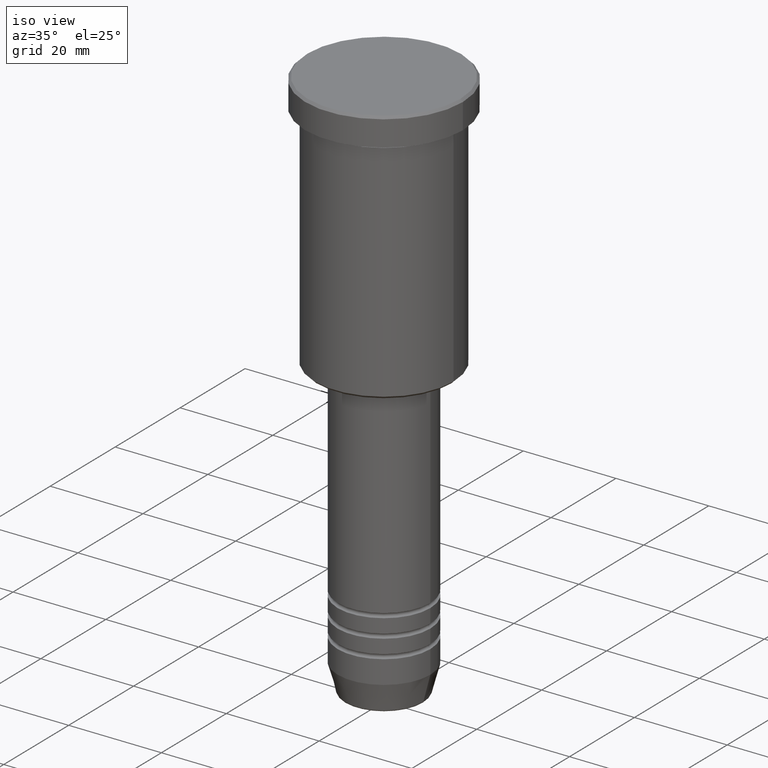
[diagram: clean part render]
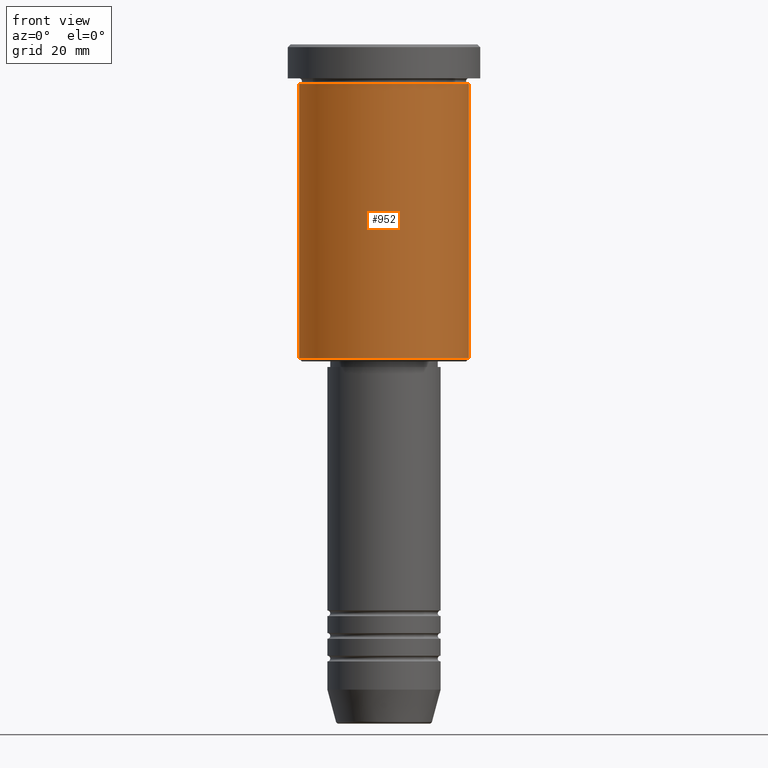
[diagram: tour spotlight — one face highlighted and labeled with its STEP entity id]
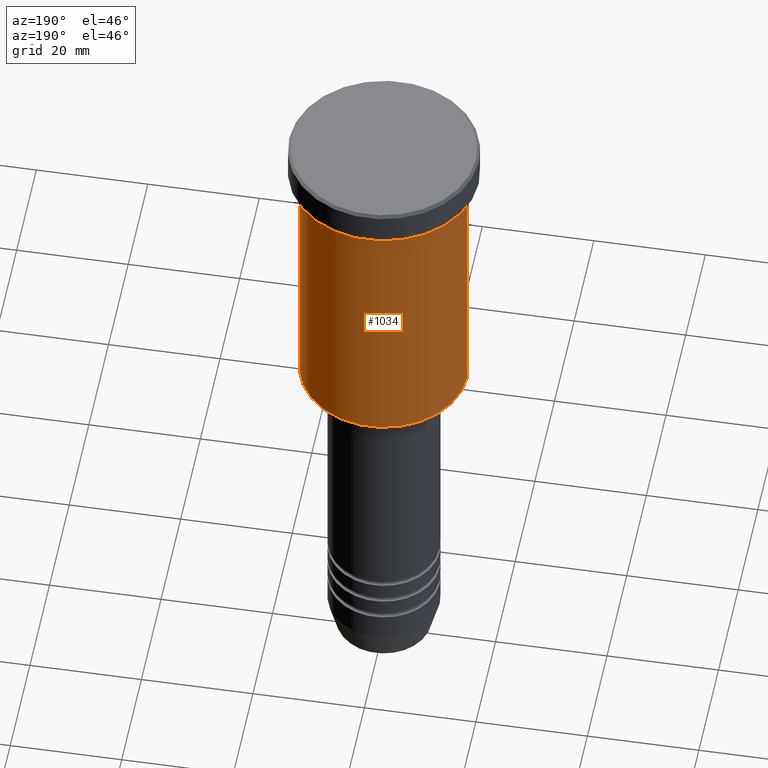
[diagram: tour spotlight — one face highlighted and labeled with its STEP entity id]
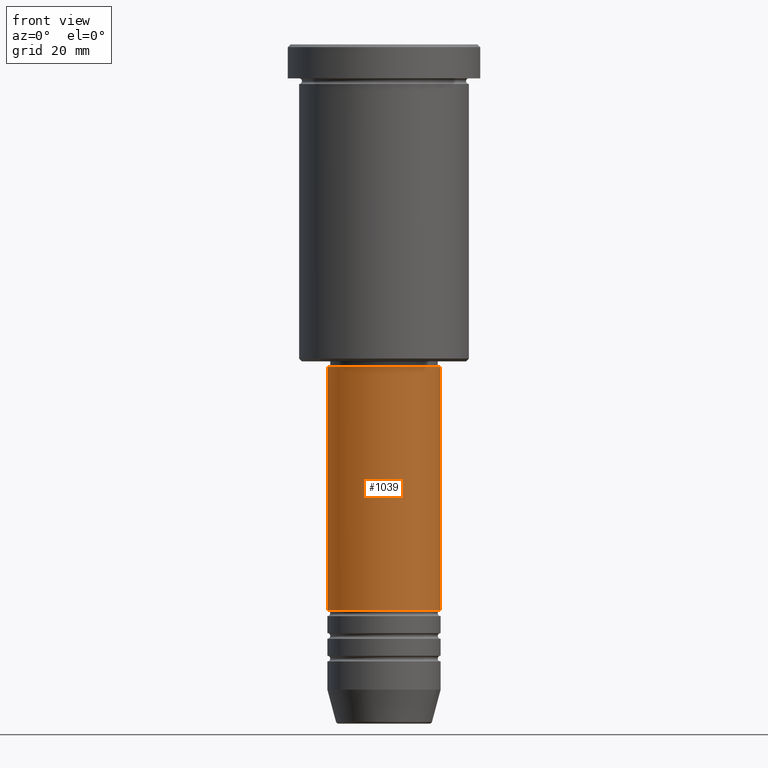
[diagram: tour spotlight — one face highlighted and labeled with its STEP entity id]
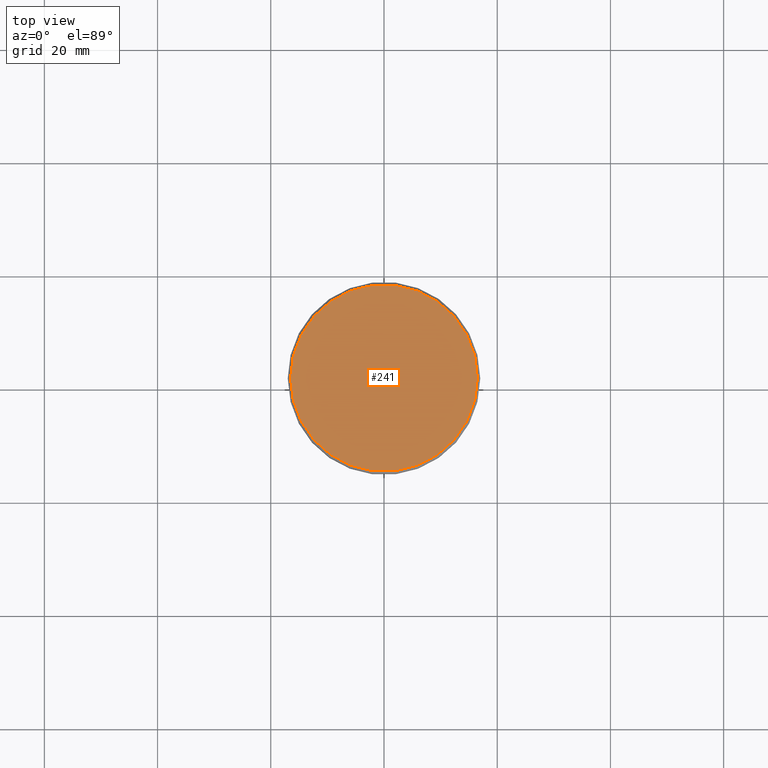
[diagram: tour spotlight — one face highlighted and labeled with its STEP entity id]
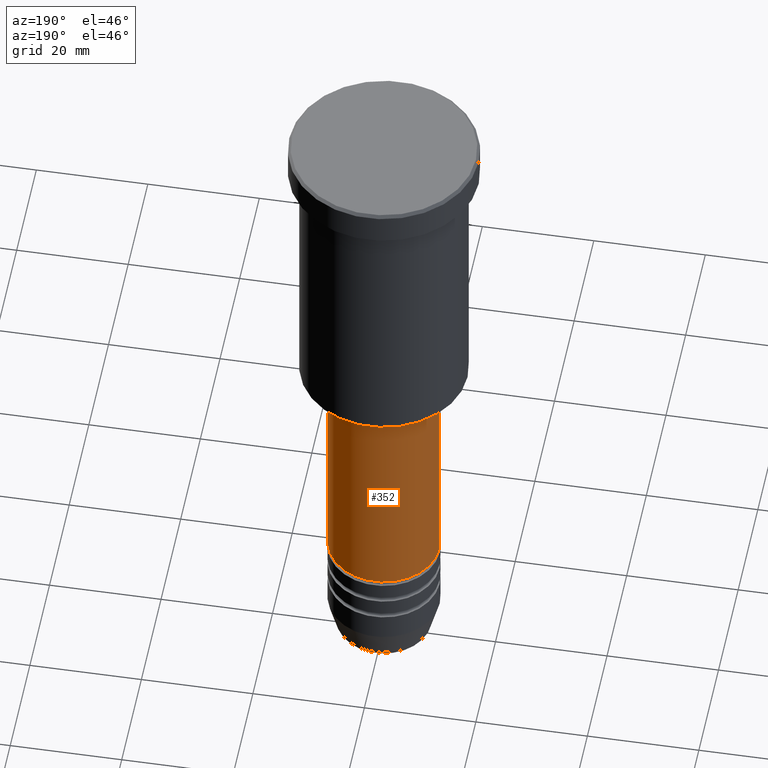
[diagram: tour spotlight — one face highlighted and labeled with its STEP entity id]
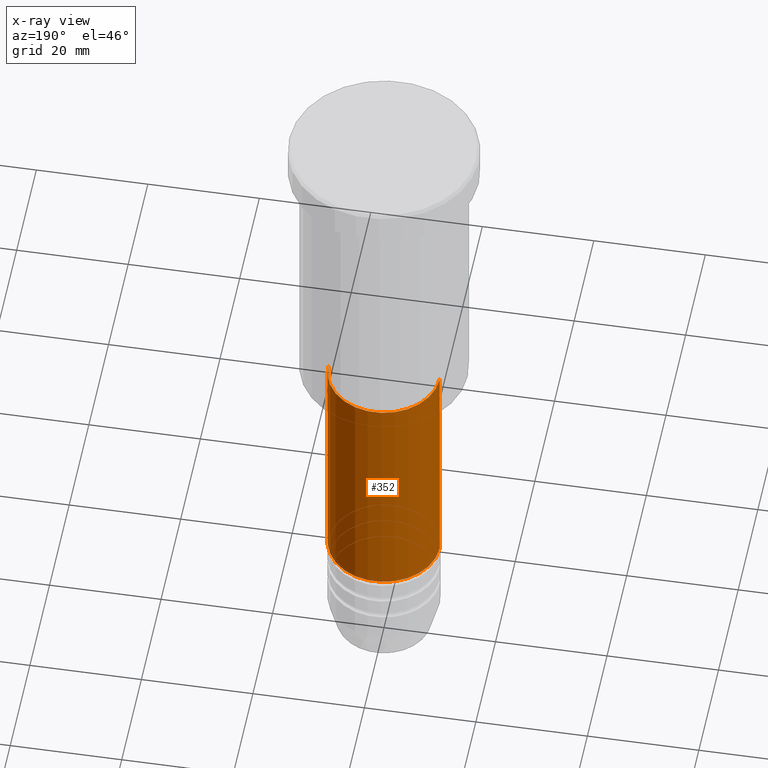
[diagram: x-ray of the same camera — body ghosted, this tour face saturated]
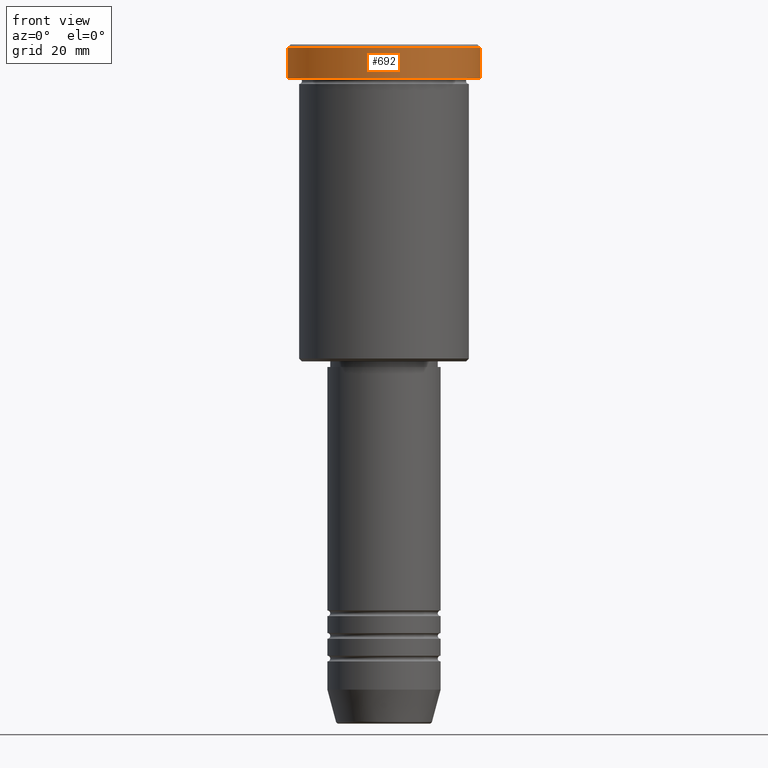
[diagram: tour spotlight — one face highlighted and labeled with its STEP entity id]
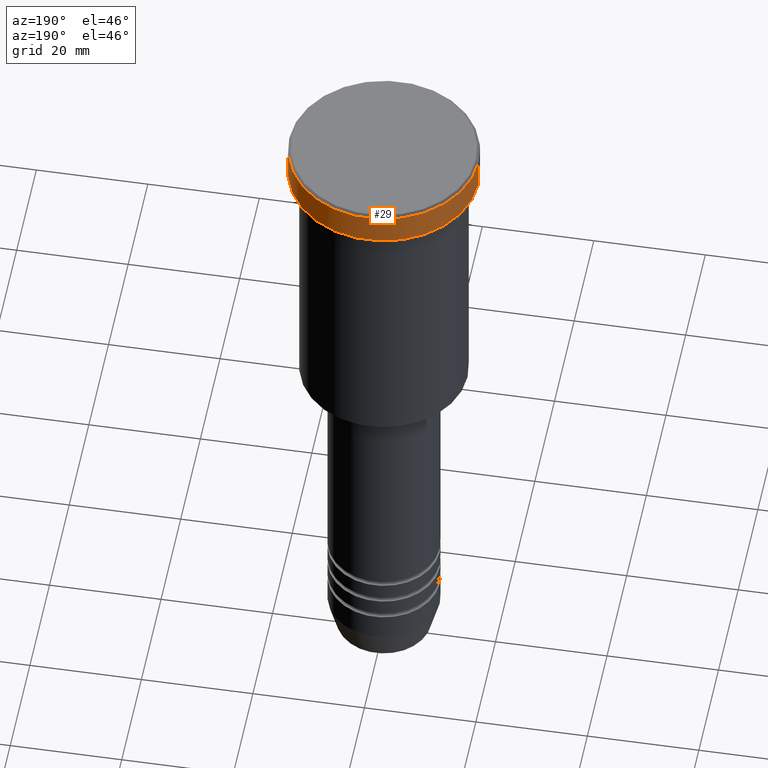
[diagram: tour spotlight — one face highlighted and labeled with its STEP entity id]
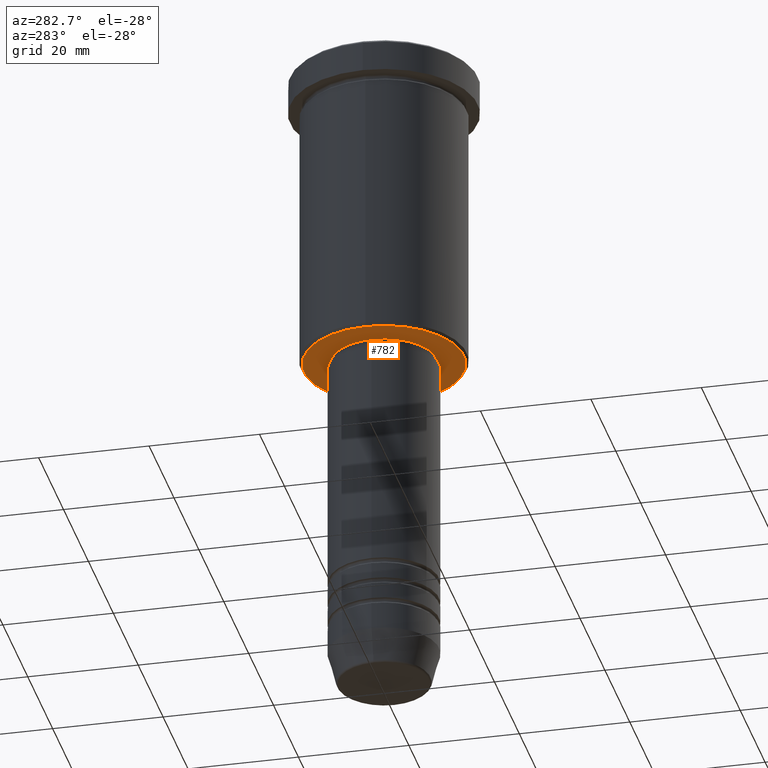
[diagram: tour spotlight — one face highlighted and labeled with its STEP entity id]
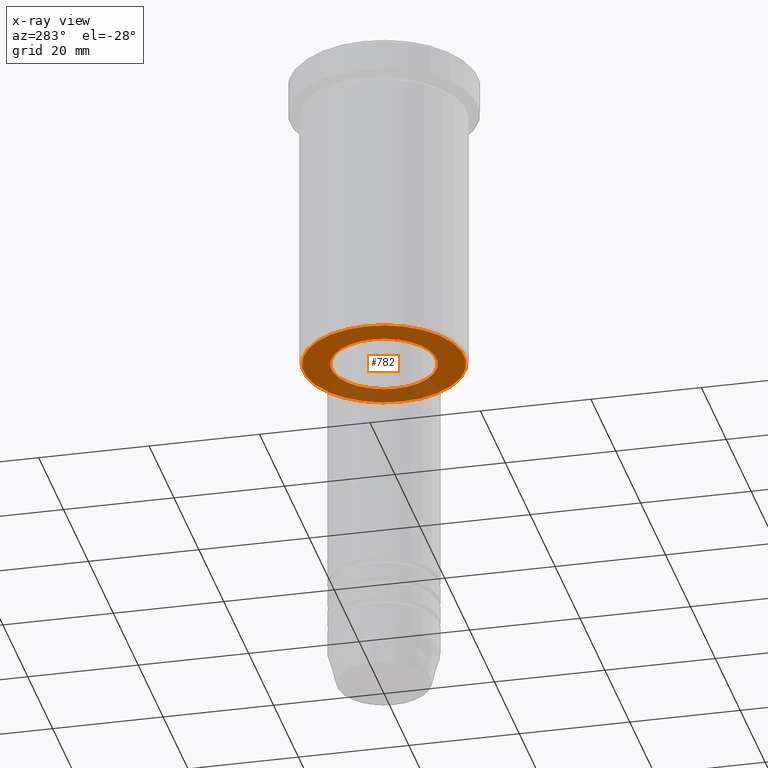
[diagram: x-ray of the same camera — body ghosted, this tour face saturated]
A machine part: a face-by-face anatomy tour. The part has 43 B-rep faces; the first image is the clean iso view, then the 8 largest visible faces are spotlighted one at a time (largest first), each with its STEP entity span.

Face 1 — front view, entity #952. In plain terms, the highlighted cylindrical surface (partial cylindrical patch) has radius 15 mm, axis along (-0, -0, 1).
Definition (entity closure, byte-faithful):
#2 = DIRECTION ( 'NONE',  ( 1.000000000000000000, 0.000000000000000000, 0.000000000000000000 ) ) ;
#9 = CARTESIAN_POINT ( 'NONE',  ( 15.00000000000000000, 0.000000000000000000, 0.000000000000000000 ) ) ;
#25 = CARTESIAN_POINT ( 'NONE',  ( 0.000000000000000000, 0.000000000000000000, 0.000000000000000000 ) ) ;
#43 = EDGE_LOOP ( 'NONE', ( #790, #792, #1123, #133 ) ) ;
#97 = CIRCLE ( 'NONE', #110, 15.00000000000000000 ) ;
#110 = AXIS2_PLACEMENT_3D ( 'NONE', #266, #975, #1078 ) ;
#133 = ORIENTED_EDGE ( 'NONE', *, *, #376, .F. ) ;
#175 = CARTESIAN_POINT ( 'NONE',  ( 15.00000000000000000, 0.000000000000000000, -55.50000000000000711 ) ) ;
#185 = LINE ( 'NONE', #9, #1049 ) ;
#213 = DIRECTION ( 'NONE',  ( -0.000000000000000000, -0.000000000000000000, 1.000000000000000000 ) ) ;
#266 = CARTESIAN_POINT ( 'NONE',  ( 0.000000000000000000, 0.000000000000000000, -6.999999999999995559 ) ) ;
#270 = CARTESIAN_POINT ( 'NONE',  ( -15.00000000000000000, 1.836970198721029589E-15, -6.999999999999995559 ) ) ;
#297 = VERTEX_POINT ( 'NONE', #677 ) ;
#301 = AXIS2_PLACEMENT_3D ( 'NONE', #25, #740, #2 ) ;
#337 = LINE ( 'NONE', #1006, #383 ) ;
#345 = CIRCLE ( 'NONE', #1107, 15.00000000000000000 ) ;
#376 = EDGE_CURVE ( 'NONE', #474, #297, #97, .T. ) ;
#383 = VECTOR ( 'NONE', #704, 1000.000000000000000 ) ;
#427 = VERTEX_POINT ( 'NONE', #175 ) ;
#474 = VERTEX_POINT ( 'NONE', #270 ) ;
#484 = EDGE_CURVE ( 'NONE', #819, #474, #337, .T. ) ;
#560 = CYLINDRICAL_SURFACE ( 'NONE', #301, 15.00000000000000000 ) ;
#581 = DIRECTION ( 'NONE',  ( -1.000000000000000000, 0.000000000000000000, 0.000000000000000000 ) ) ;
#677 = CARTESIAN_POINT ( 'NONE',  ( 15.00000000000000000, 0.000000000000000000, -6.999999999999995559 ) ) ;
#704 = DIRECTION ( 'NONE',  ( -0.000000000000000000, -0.000000000000000000, 1.000000000000000000 ) ) ;
#731 = DIRECTION ( 'NONE',  ( -0.000000000000000000, -0.000000000000000000, 1.000000000000000000 ) ) ;
#740 = DIRECTION ( 'NONE',  ( -0.000000000000000000, -0.000000000000000000, 1.000000000000000000 ) ) ;
#747 = FACE_OUTER_BOUND ( 'NONE', #43, .T. ) ;
#790 = ORIENTED_EDGE ( 'NONE', *, *, #484, .F. ) ;
#792 = ORIENTED_EDGE ( 'NONE', *, *, #1100, .T. ) ;
#819 = VERTEX_POINT ( 'NONE', #1086 ) ;
#952 = ADVANCED_FACE ( 'NONE', ( #747 ), #560, .T. ) ;
#975 = DIRECTION ( 'NONE',  ( -0.000000000000000000, -0.000000000000000000, 1.000000000000000000 ) ) ;
#1006 = CARTESIAN_POINT ( 'NONE',  ( -15.00000000000000000, 1.836970198721029589E-15, 0.000000000000000000 ) ) ;
#1047 = CARTESIAN_POINT ( 'NONE',  ( 0.000000000000000000, 0.000000000000000000, -55.50000000000000711 ) ) ;
#1049 = VECTOR ( 'NONE', #731, 1000.000000000000000 ) ;
#1078 = DIRECTION ( 'NONE',  ( 1.000000000000000000, 0.000000000000000000, 0.000000000000000000 ) ) ;
#1085 = EDGE_CURVE ( 'NONE', #427, #297, #185, .T. ) ;
#1086 = CARTESIAN_POINT ( 'NONE',  ( -15.00000000000000000, 1.836970198721029589E-15, -55.50000000000000711 ) ) ;
#1100 = EDGE_CURVE ( 'NONE', #819, #427, #345, .T. ) ;
#1107 = AXIS2_PLACEMENT_3D ( 'NONE', #1047, #213, #581 ) ;
#1123 = ORIENTED_EDGE ( 'NONE', *, *, #1085, .T. ) ;

Face 2 — auxiliary view, entity #1034. In plain terms, the highlighted cylindrical surface (partial cylindrical patch) has radius 15 mm, axis along (-0, -0, 1).
Definition (entity closure, byte-faithful):
#9 = CARTESIAN_POINT ( 'NONE',  ( 15.00000000000000000, 0.000000000000000000, 0.000000000000000000 ) ) ;
#68 = DIRECTION ( 'NONE',  ( 1.000000000000000000, 0.000000000000000000, 0.000000000000000000 ) ) ;
#101 = FACE_OUTER_BOUND ( 'NONE', #950, .T. ) ;
#107 = EDGE_CURVE ( 'NONE', #427, #819, #1127, .T. ) ;
#175 = CARTESIAN_POINT ( 'NONE',  ( 15.00000000000000000, 0.000000000000000000, -55.50000000000000711 ) ) ;
#185 = LINE ( 'NONE', #9, #1049 ) ;
#193 = AXIS2_PLACEMENT_3D ( 'NONE', #282, #563, #556 ) ;
#270 = CARTESIAN_POINT ( 'NONE',  ( -15.00000000000000000, 1.836970198721029589E-15, -6.999999999999995559 ) ) ;
#282 = CARTESIAN_POINT ( 'NONE',  ( 0.000000000000000000, 0.000000000000000000, -55.50000000000000711 ) ) ;
#297 = VERTEX_POINT ( 'NONE', #677 ) ;
#337 = LINE ( 'NONE', #1006, #383 ) ;
#383 = VECTOR ( 'NONE', #704, 1000.000000000000000 ) ;
#427 = VERTEX_POINT ( 'NONE', #175 ) ;
#430 = CARTESIAN_POINT ( 'NONE',  ( 0.000000000000000000, 0.000000000000000000, -6.999999999999995559 ) ) ;
#474 = VERTEX_POINT ( 'NONE', #270 ) ;
#475 = CYLINDRICAL_SURFACE ( 'NONE', #861, 15.00000000000000000 ) ;
#484 = EDGE_CURVE ( 'NONE', #819, #474, #337, .T. ) ;
#525 = ORIENTED_EDGE ( 'NONE', *, *, #1085, .F. ) ;
#556 = DIRECTION ( 'NONE',  ( -1.000000000000000000, 0.000000000000000000, 0.000000000000000000 ) ) ;
#563 = DIRECTION ( 'NONE',  ( -0.000000000000000000, -0.000000000000000000, 1.000000000000000000 ) ) ;
#611 = ORIENTED_EDGE ( 'NONE', *, *, #947, .F. ) ;
#677 = CARTESIAN_POINT ( 'NONE',  ( 15.00000000000000000, 0.000000000000000000, -6.999999999999995559 ) ) ;
#696 = ORIENTED_EDGE ( 'NONE', *, *, #107, .T. ) ;
#704 = DIRECTION ( 'NONE',  ( -0.000000000000000000, -0.000000000000000000, 1.000000000000000000 ) ) ;
#731 = DIRECTION ( 'NONE',  ( -0.000000000000000000, -0.000000000000000000, 1.000000000000000000 ) ) ;
#777 = AXIS2_PLACEMENT_3D ( 'NONE', #430, #1158, #68 ) ;
#819 = VERTEX_POINT ( 'NONE', #1086 ) ;
#838 = DIRECTION ( 'NONE',  ( 1.000000000000000000, 0.000000000000000000, 0.000000000000000000 ) ) ;
#861 = AXIS2_PLACEMENT_3D ( 'NONE', #1007, #1101, #838 ) ;
#881 = CIRCLE ( 'NONE', #777, 15.00000000000000000 ) ;
#947 = EDGE_CURVE ( 'NONE', #297, #474, #881, .T. ) ;
#950 = EDGE_LOOP ( 'NONE', ( #696, #967, #611, #525 ) ) ;
#967 = ORIENTED_EDGE ( 'NONE', *, *, #484, .T. ) ;
#1006 = CARTESIAN_POINT ( 'NONE',  ( -15.00000000000000000, 1.836970198721029589E-15, 0.000000000000000000 ) ) ;
#1007 = CARTESIAN_POINT ( 'NONE',  ( 0.000000000000000000, 0.000000000000000000, 0.000000000000000000 ) ) ;
#1034 = ADVANCED_FACE ( 'NONE', ( #101 ), #475, .T. ) ;
#1049 = VECTOR ( 'NONE', #731, 1000.000000000000000 ) ;
#1085 = EDGE_CURVE ( 'NONE', #427, #297, #185, .T. ) ;
#1086 = CARTESIAN_POINT ( 'NONE',  ( -15.00000000000000000, 1.836970198721029589E-15, -55.50000000000000711 ) ) ;
#1101 = DIRECTION ( 'NONE',  ( -0.000000000000000000, -0.000000000000000000, 1.000000000000000000 ) ) ;
#1127 = CIRCLE ( 'NONE', #193, 15.00000000000000000 ) ;
#1158 = DIRECTION ( 'NONE',  ( -0.000000000000000000, -0.000000000000000000, 1.000000000000000000 ) ) ;

Face 3 — front view, entity #1039. In plain terms, the highlighted cylindrical surface (partial cylindrical patch) has radius 10 mm, axis along (-0, -0, 1).
Definition (entity closure, byte-faithful):
#16 = FACE_OUTER_BOUND ( 'NONE', #706, .T. ) ;
#54 = EDGE_CURVE ( 'NONE', #1088, #498, #172, .T. ) ;
#62 = DIRECTION ( 'NONE',  ( -0.000000000000000000, -0.000000000000000000, 1.000000000000000000 ) ) ;
#63 = CARTESIAN_POINT ( 'NONE',  ( -9.999999999999998224, 1.224646799147353256E-15, -57.00000000000002842 ) ) ;
#151 = AXIS2_PLACEMENT_3D ( 'NONE', #294, #654, #826 ) ;
#172 = LINE ( 'NONE', #1173, #882 ) ;
#247 = CARTESIAN_POINT ( 'NONE',  ( 9.999999999999998224, 0.000000000000000000, -57.00000000000002842 ) ) ;
#284 = CYLINDRICAL_SURFACE ( 'NONE', #151, 10.00000000000000000 ) ;
#294 = CARTESIAN_POINT ( 'NONE',  ( 0.000000000000000000, 0.000000000000000000, 0.000000000000000000 ) ) ;
#319 = CARTESIAN_POINT ( 'NONE',  ( 0.000000000000000000, 0.000000000000000000, -57.00000000000002842 ) ) ;
#341 = ORIENTED_EDGE ( 'NONE', *, *, #942, .F. ) ;
#362 = CARTESIAN_POINT ( 'NONE',  ( 0.000000000000000000, 0.000000000000000000, -99.99999999999997158 ) ) ;
#396 = VERTEX_POINT ( 'NONE', #63 ) ;
#455 = DIRECTION ( 'NONE',  ( -0.000000000000000000, -0.000000000000000000, 1.000000000000000000 ) ) ;
#481 = AXIS2_PLACEMENT_3D ( 'NONE', #362, #725, #1094 ) ;
#498 = VERTEX_POINT ( 'NONE', #247 ) ;
#569 = CARTESIAN_POINT ( 'NONE',  ( -10.00000000000000178, 1.224646799147353454E-15, -99.99999999999997158 ) ) ;
#654 = DIRECTION ( 'NONE',  ( -0.000000000000000000, -0.000000000000000000, 1.000000000000000000 ) ) ;
#678 = EDGE_CURVE ( 'NONE', #396, #498, #1021, .T. ) ;
#695 = ORIENTED_EDGE ( 'NONE', *, *, #1082, .T. ) ;
#706 = EDGE_LOOP ( 'NONE', ( #341, #695, #982, #895 ) ) ;
#723 = VECTOR ( 'NONE', #62, 1000.000000000000000 ) ;
#725 = DIRECTION ( 'NONE',  ( -0.000000000000000000, -0.000000000000000000, 1.000000000000000000 ) ) ;
#745 = AXIS2_PLACEMENT_3D ( 'NONE', #319, #1048, #948 ) ;
#767 = CARTESIAN_POINT ( 'NONE',  ( 10.00000000000000178, 0.000000000000000000, -99.99999999999997158 ) ) ;
#826 = DIRECTION ( 'NONE',  ( 1.000000000000000000, 0.000000000000000000, 0.000000000000000000 ) ) ;
#882 = VECTOR ( 'NONE', #455, 1000.000000000000000 ) ;
#886 = LINE ( 'NONE', #1061, #723 ) ;
#895 = ORIENTED_EDGE ( 'NONE', *, *, #678, .F. ) ;
#942 = EDGE_CURVE ( 'NONE', #1065, #396, #886, .T. ) ;
#948 = DIRECTION ( 'NONE',  ( 1.000000000000000000, 0.000000000000000000, 0.000000000000000000 ) ) ;
#982 = ORIENTED_EDGE ( 'NONE', *, *, #54, .T. ) ;
#1021 = CIRCLE ( 'NONE', #745, 9.999999999999998224 ) ;
#1039 = ADVANCED_FACE ( 'NONE', ( #16 ), #284, .T. ) ;
#1048 = DIRECTION ( 'NONE',  ( -0.000000000000000000, -0.000000000000000000, 1.000000000000000000 ) ) ;
#1061 = CARTESIAN_POINT ( 'NONE',  ( -10.00000000000000000, 1.224646799147353256E-15, 0.000000000000000000 ) ) ;
#1065 = VERTEX_POINT ( 'NONE', #569 ) ;
#1082 = EDGE_CURVE ( 'NONE', #1065, #1088, #1126, .T. ) ;
#1088 = VERTEX_POINT ( 'NONE', #767 ) ;
#1094 = DIRECTION ( 'NONE',  ( 1.000000000000000000, 0.000000000000000000, 0.000000000000000000 ) ) ;
#1126 = CIRCLE ( 'NONE', #481, 10.00000000000000178 ) ;
#1173 = CARTESIAN_POINT ( 'NONE',  ( 10.00000000000000000, 0.000000000000000000, 0.000000000000000000 ) ) ;

Face 4 — top view, entity #241. In plain terms, the highlighted planar face has unit normal (0, -0, 1).
Definition (entity closure, byte-faithful):
#13 = DIRECTION ( 'NONE',  ( 1.000000000000000000, 0.000000000000000000, 0.000000000000000000 ) ) ;
#28 = CARTESIAN_POINT ( 'NONE',  ( 16.50000000000001421, 2.051283388571817281E-15, 0.000000000000000000 ) ) ;
#192 = AXIS2_PLACEMENT_3D ( 'NONE', #298, #595, #753 ) ;
#204 = EDGE_CURVE ( 'NONE', #618, #530, #398, .T. ) ;
#241 = ADVANCED_FACE ( 'NONE', ( #320 ), #949, .T. ) ;
#289 = AXIS2_PLACEMENT_3D ( 'NONE', #830, #1182, #13 ) ;
#298 = CARTESIAN_POINT ( 'NONE',  ( 0.000000000000000000, 0.000000000000000000, 0.000000000000000000 ) ) ;
#314 = CARTESIAN_POINT ( 'NONE',  ( 0.000000000000000000, 0.000000000000000000, 0.000000000000000000 ) ) ;
#320 = FACE_OUTER_BOUND ( 'NONE', #901, .T. ) ;
#398 = CIRCLE ( 'NONE', #289, 16.50000000000001421 ) ;
#530 = VERTEX_POINT ( 'NONE', #28 ) ;
#590 = CIRCLE ( 'NONE', #192, 16.50000000000001421 ) ;
#595 = DIRECTION ( 'NONE',  ( -0.000000000000000000, -0.000000000000000000, 1.000000000000000000 ) ) ;
#618 = VERTEX_POINT ( 'NONE', #1024 ) ;
#724 = AXIS2_PLACEMENT_3D ( 'NONE', #314, #870, #946 ) ;
#753 = DIRECTION ( 'NONE',  ( 1.000000000000000000, 0.000000000000000000, 0.000000000000000000 ) ) ;
#770 = ORIENTED_EDGE ( 'NONE', *, *, #1153, .T. ) ;
#779 = ORIENTED_EDGE ( 'NONE', *, *, #204, .T. ) ;
#830 = CARTESIAN_POINT ( 'NONE',  ( 0.000000000000000000, 0.000000000000000000, 0.000000000000000000 ) ) ;
#870 = DIRECTION ( 'NONE',  ( 0.000000000000000000, -0.000000000000000000, 1.000000000000000000 ) ) ;
#901 = EDGE_LOOP ( 'NONE', ( #779, #770 ) ) ;
#946 = DIRECTION ( 'NONE',  ( 1.000000000000000000, 0.000000000000000000, 0.000000000000000000 ) ) ;
#949 = PLANE ( 'NONE',  #724 ) ;
#1024 = CARTESIAN_POINT ( 'NONE',  ( -16.50000000000001421, 0.000000000000000000, 0.000000000000000000 ) ) ;
#1153 = EDGE_CURVE ( 'NONE', #530, #618, #590, .T. ) ;
#1182 = DIRECTION ( 'NONE',  ( -0.000000000000000000, -0.000000000000000000, 1.000000000000000000 ) ) ;

Face 5 — auxiliary view, entity #352. An x-ray twin of the same camera follows (body ghosted, this face saturated) — the face is partly hidden behind the body. In plain terms, the highlighted cylindrical surface (partial cylindrical patch) has radius 10 mm, axis along (-0, -0, 1).
Definition (entity closure, byte-faithful):
#54 = EDGE_CURVE ( 'NONE', #1088, #498, #172, .T. ) ;
#62 = DIRECTION ( 'NONE',  ( -0.000000000000000000, -0.000000000000000000, 1.000000000000000000 ) ) ;
#63 = CARTESIAN_POINT ( 'NONE',  ( -9.999999999999998224, 1.224646799147353256E-15, -57.00000000000002842 ) ) ;
#73 = EDGE_LOOP ( 'NONE', ( #125, #228, #1137, #785 ) ) ;
#125 = ORIENTED_EDGE ( 'NONE', *, *, #1105, .T. ) ;
#172 = LINE ( 'NONE', #1173, #882 ) ;
#228 = ORIENTED_EDGE ( 'NONE', *, *, #942, .T. ) ;
#247 = CARTESIAN_POINT ( 'NONE',  ( 9.999999999999998224, 0.000000000000000000, -57.00000000000002842 ) ) ;
#306 = DIRECTION ( 'NONE',  ( 1.000000000000000000, 0.000000000000000000, 0.000000000000000000 ) ) ;
#318 = CARTESIAN_POINT ( 'NONE',  ( 0.000000000000000000, 0.000000000000000000, -99.99999999999997158 ) ) ;
#352 = ADVANCED_FACE ( 'NONE', ( #425 ), #578, .T. ) ;
#396 = VERTEX_POINT ( 'NONE', #63 ) ;
#425 = FACE_OUTER_BOUND ( 'NONE', #73, .T. ) ;
#455 = DIRECTION ( 'NONE',  ( -0.000000000000000000, -0.000000000000000000, 1.000000000000000000 ) ) ;
#491 = DIRECTION ( 'NONE',  ( -0.000000000000000000, -0.000000000000000000, 1.000000000000000000 ) ) ;
#493 = CARTESIAN_POINT ( 'NONE',  ( 0.000000000000000000, 0.000000000000000000, 0.000000000000000000 ) ) ;
#497 = DIRECTION ( 'NONE',  ( -0.000000000000000000, -0.000000000000000000, 1.000000000000000000 ) ) ;
#498 = VERTEX_POINT ( 'NONE', #247 ) ;
#539 = DIRECTION ( 'NONE',  ( 1.000000000000000000, 0.000000000000000000, 0.000000000000000000 ) ) ;
#569 = CARTESIAN_POINT ( 'NONE',  ( -10.00000000000000178, 1.224646799147353454E-15, -99.99999999999997158 ) ) ;
#578 = CYLINDRICAL_SURFACE ( 'NONE', #1129, 10.00000000000000000 ) ;
#691 = CIRCLE ( 'NONE', #860, 9.999999999999998224 ) ;
#723 = VECTOR ( 'NONE', #62, 1000.000000000000000 ) ;
#767 = CARTESIAN_POINT ( 'NONE',  ( 10.00000000000000178, 0.000000000000000000, -99.99999999999997158 ) ) ;
#785 = ORIENTED_EDGE ( 'NONE', *, *, #54, .F. ) ;
#794 = DIRECTION ( 'NONE',  ( -0.000000000000000000, -0.000000000000000000, 1.000000000000000000 ) ) ;
#796 = EDGE_CURVE ( 'NONE', #498, #396, #691, .T. ) ;
#843 = AXIS2_PLACEMENT_3D ( 'NONE', #318, #491, #306 ) ;
#855 = DIRECTION ( 'NONE',  ( 1.000000000000000000, 0.000000000000000000, 0.000000000000000000 ) ) ;
#860 = AXIS2_PLACEMENT_3D ( 'NONE', #1122, #794, #539 ) ;
#882 = VECTOR ( 'NONE', #455, 1000.000000000000000 ) ;
#886 = LINE ( 'NONE', #1061, #723 ) ;
#942 = EDGE_CURVE ( 'NONE', #1065, #396, #886, .T. ) ;
#1061 = CARTESIAN_POINT ( 'NONE',  ( -10.00000000000000000, 1.224646799147353256E-15, 0.000000000000000000 ) ) ;
#1065 = VERTEX_POINT ( 'NONE', #569 ) ;
#1070 = CIRCLE ( 'NONE', #843, 10.00000000000000178 ) ;
#1088 = VERTEX_POINT ( 'NONE', #767 ) ;
#1105 = EDGE_CURVE ( 'NONE', #1088, #1065, #1070, .T. ) ;
#1122 = CARTESIAN_POINT ( 'NONE',  ( 0.000000000000000000, 0.000000000000000000, -57.00000000000002842 ) ) ;
#1129 = AXIS2_PLACEMENT_3D ( 'NONE', #493, #497, #855 ) ;
#1137 = ORIENTED_EDGE ( 'NONE', *, *, #796, .F. ) ;
#1173 = CARTESIAN_POINT ( 'NONE',  ( 10.00000000000000000, 0.000000000000000000, 0.000000000000000000 ) ) ;

Face 6 — front view, entity #692. In plain terms, the highlighted cylindrical surface (partial cylindrical patch) has radius 17 mm, axis along (-0, -0, 1).
Definition (entity closure, byte-faithful):
#7 = CIRCLE ( 'NONE', #667, 17.00000000000000000 ) ;
#12 = DIRECTION ( 'NONE',  ( 1.000000000000000000, 0.000000000000000000, 0.000000000000000000 ) ) ;
#35 = ORIENTED_EDGE ( 'NONE', *, *, #732, .F. ) ;
#102 = ORIENTED_EDGE ( 'NONE', *, *, #300, .T. ) ;
#112 = CARTESIAN_POINT ( 'NONE',  ( -17.00000000000000000, 2.081899558550500280E-15, -0.4999999999999935052 ) ) ;
#123 = CARTESIAN_POINT ( 'NONE',  ( -17.00000000000000000, 2.081899558550500280E-15, 0.000000000000000000 ) ) ;
#148 = VERTEX_POINT ( 'NONE', #112 ) ;
#156 = VERTEX_POINT ( 'NONE', #842 ) ;
#215 = CARTESIAN_POINT ( 'NONE',  ( 17.00000000000000000, 0.000000000000000000, -5.999999999999994671 ) ) ;
#225 = CARTESIAN_POINT ( 'NONE',  ( -17.00000000000000000, 2.081899558550500280E-15, -5.999999999999994671 ) ) ;
#262 = ORIENTED_EDGE ( 'NONE', *, *, #542, .T. ) ;
#291 = VECTOR ( 'NONE', #1042, 1000.000000000000000 ) ;
#300 = EDGE_CURVE ( 'NONE', #674, #156, #406, .T. ) ;
#348 = VECTOR ( 'NONE', #683, 1000.000000000000000 ) ;
#365 = AXIS2_PLACEMENT_3D ( 'NONE', #931, #1098, #12 ) ;
#379 = DIRECTION ( 'NONE',  ( 1.000000000000000000, 0.000000000000000000, 0.000000000000000000 ) ) ;
#406 = LINE ( 'NONE', #583, #348 ) ;
#445 = CIRCLE ( 'NONE', #365, 17.00000000000000000 ) ;
#542 = EDGE_CURVE ( 'NONE', #156, #148, #7, .T. ) ;
#577 = CARTESIAN_POINT ( 'NONE',  ( 0.000000000000000000, 0.000000000000000000, 0.000000000000000000 ) ) ;
#583 = CARTESIAN_POINT ( 'NONE',  ( 17.00000000000000000, 0.000000000000000000, 0.000000000000000000 ) ) ;
#588 = FACE_OUTER_BOUND ( 'NONE', #1055, .T. ) ;
#647 = DIRECTION ( 'NONE',  ( 0.000000000000000000, 0.000000000000000000, -1.000000000000000000 ) ) ;
#651 = VERTEX_POINT ( 'NONE', #225 ) ;
#667 = AXIS2_PLACEMENT_3D ( 'NONE', #845, #647, #379 ) ;
#674 = VERTEX_POINT ( 'NONE', #215 ) ;
#682 = DIRECTION ( 'NONE',  ( 1.000000000000000000, 0.000000000000000000, 0.000000000000000000 ) ) ;
#683 = DIRECTION ( 'NONE',  ( -0.000000000000000000, -0.000000000000000000, 1.000000000000000000 ) ) ;
#692 = ADVANCED_FACE ( 'NONE', ( #588 ), #763, .T. ) ;
#732 = EDGE_CURVE ( 'NONE', #651, #148, #1128, .T. ) ;
#763 = CYLINDRICAL_SURFACE ( 'NONE', #885, 17.00000000000000000 ) ;
#808 = ORIENTED_EDGE ( 'NONE', *, *, #1029, .T. ) ;
#842 = CARTESIAN_POINT ( 'NONE',  ( 17.00000000000000000, 0.000000000000000000, -0.4999999999999935052 ) ) ;
#845 = CARTESIAN_POINT ( 'NONE',  ( 0.000000000000000000, 0.000000000000000000, -0.4999999999999935052 ) ) ;
#885 = AXIS2_PLACEMENT_3D ( 'NONE', #577, #953, #682 ) ;
#931 = CARTESIAN_POINT ( 'NONE',  ( 0.000000000000000000, 0.000000000000000000, -5.999999999999994671 ) ) ;
#953 = DIRECTION ( 'NONE',  ( -0.000000000000000000, -0.000000000000000000, 1.000000000000000000 ) ) ;
#1029 = EDGE_CURVE ( 'NONE', #651, #674, #445, .T. ) ;
#1042 = DIRECTION ( 'NONE',  ( -0.000000000000000000, -0.000000000000000000, 1.000000000000000000 ) ) ;
#1055 = EDGE_LOOP ( 'NONE', ( #35, #808, #102, #262 ) ) ;
#1098 = DIRECTION ( 'NONE',  ( -0.000000000000000000, -0.000000000000000000, 1.000000000000000000 ) ) ;
#1128 = LINE ( 'NONE', #123, #291 ) ;

Face 7 — auxiliary view, entity #29. In plain terms, the highlighted cylindrical surface (partial cylindrical patch) has radius 17 mm, axis along (-0, -0, 1).
Definition (entity closure, byte-faithful):
#29 = ADVANCED_FACE ( 'NONE', ( #1104 ), #187, .T. ) ;
#91 = CARTESIAN_POINT ( 'NONE',  ( 0.000000000000000000, 0.000000000000000000, -5.999999999999994671 ) ) ;
#94 = CARTESIAN_POINT ( 'NONE',  ( 0.000000000000000000, 0.000000000000000000, 0.000000000000000000 ) ) ;
#104 = DIRECTION ( 'NONE',  ( 1.000000000000000000, 0.000000000000000000, 0.000000000000000000 ) ) ;
#112 = CARTESIAN_POINT ( 'NONE',  ( -17.00000000000000000, 2.081899558550500280E-15, -0.4999999999999935052 ) ) ;
#123 = CARTESIAN_POINT ( 'NONE',  ( -17.00000000000000000, 2.081899558550500280E-15, 0.000000000000000000 ) ) ;
#126 = CIRCLE ( 'NONE', #707, 17.00000000000000000 ) ;
#148 = VERTEX_POINT ( 'NONE', #112 ) ;
#155 = ORIENTED_EDGE ( 'NONE', *, *, #988, .T. ) ;
#156 = VERTEX_POINT ( 'NONE', #842 ) ;
#187 = CYLINDRICAL_SURFACE ( 'NONE', #382, 17.00000000000000000 ) ;
#215 = CARTESIAN_POINT ( 'NONE',  ( 17.00000000000000000, 0.000000000000000000, -5.999999999999994671 ) ) ;
#225 = CARTESIAN_POINT ( 'NONE',  ( -17.00000000000000000, 2.081899558550500280E-15, -5.999999999999994671 ) ) ;
#291 = VECTOR ( 'NONE', #1042, 1000.000000000000000 ) ;
#300 = EDGE_CURVE ( 'NONE', #674, #156, #406, .T. ) ;
#348 = VECTOR ( 'NONE', #683, 1000.000000000000000 ) ;
#350 = ORIENTED_EDGE ( 'NONE', *, *, #1016, .T. ) ;
#382 = AXIS2_PLACEMENT_3D ( 'NONE', #94, #470, #831 ) ;
#385 = DIRECTION ( 'NONE',  ( -0.000000000000000000, -0.000000000000000000, 1.000000000000000000 ) ) ;
#406 = LINE ( 'NONE', #583, #348 ) ;
#470 = DIRECTION ( 'NONE',  ( -0.000000000000000000, -0.000000000000000000, 1.000000000000000000 ) ) ;
#472 = CARTESIAN_POINT ( 'NONE',  ( 0.000000000000000000, 0.000000000000000000, -0.4999999999999935052 ) ) ;
#499 = CIRCLE ( 'NONE', #937, 17.00000000000000000 ) ;
#566 = DIRECTION ( 'NONE',  ( 0.000000000000000000, 0.000000000000000000, -1.000000000000000000 ) ) ;
#583 = CARTESIAN_POINT ( 'NONE',  ( 17.00000000000000000, 0.000000000000000000, 0.000000000000000000 ) ) ;
#651 = VERTEX_POINT ( 'NONE', #225 ) ;
#674 = VERTEX_POINT ( 'NONE', #215 ) ;
#683 = DIRECTION ( 'NONE',  ( -0.000000000000000000, -0.000000000000000000, 1.000000000000000000 ) ) ;
#700 = EDGE_LOOP ( 'NONE', ( #155, #798, #350, #873 ) ) ;
#707 = AXIS2_PLACEMENT_3D ( 'NONE', #472, #566, #832 ) ;
#732 = EDGE_CURVE ( 'NONE', #651, #148, #1128, .T. ) ;
#798 = ORIENTED_EDGE ( 'NONE', *, *, #732, .T. ) ;
#831 = DIRECTION ( 'NONE',  ( 1.000000000000000000, 0.000000000000000000, 0.000000000000000000 ) ) ;
#832 = DIRECTION ( 'NONE',  ( 1.000000000000000000, 0.000000000000000000, 0.000000000000000000 ) ) ;
#842 = CARTESIAN_POINT ( 'NONE',  ( 17.00000000000000000, 0.000000000000000000, -0.4999999999999935052 ) ) ;
#873 = ORIENTED_EDGE ( 'NONE', *, *, #300, .F. ) ;
#937 = AXIS2_PLACEMENT_3D ( 'NONE', #91, #385, #104 ) ;
#988 = EDGE_CURVE ( 'NONE', #674, #651, #499, .T. ) ;
#1016 = EDGE_CURVE ( 'NONE', #148, #156, #126, .T. ) ;
#1042 = DIRECTION ( 'NONE',  ( -0.000000000000000000, -0.000000000000000000, 1.000000000000000000 ) ) ;
#1104 = FACE_OUTER_BOUND ( 'NONE', #700, .T. ) ;
#1128 = LINE ( 'NONE', #123, #291 ) ;

Face 8 — auxiliary view, entity #782. An x-ray twin of the same camera follows (body ghosted, this face saturated) — the face is partly hidden behind the body. In plain terms, the highlighted planar face has unit normal (0, 0, -1).
Definition (entity closure, byte-faithful):
#8 = AXIS2_PLACEMENT_3D ( 'NONE', #344, #907, #710 ) ;
#89 = EDGE_CURVE ( 'NONE', #519, #478, #1031, .T. ) ;
#100 = CARTESIAN_POINT ( 'NONE',  ( -14.49999999999999645, 1.806354028742345802E-15, -56.00000000000000711 ) ) ;
#106 = ORIENTED_EDGE ( 'NONE', *, *, #89, .T. ) ;
#129 = AXIS2_PLACEMENT_3D ( 'NONE', #380, #649, #640 ) ;
#144 = PLANE ( 'NONE',  #154 ) ;
#154 = AXIS2_PLACEMENT_3D ( 'NONE', #512, #394, #878 ) ;
#274 = AXIS2_PLACEMENT_3D ( 'NONE', #629, #431, #528 ) ;
#299 = FACE_OUTER_BOUND ( 'NONE', #911, .T. ) ;
#344 = CARTESIAN_POINT ( 'NONE',  ( 0.000000000000000000, 0.000000000000000000, -56.00000000000000711 ) ) ;
#380 = CARTESIAN_POINT ( 'NONE',  ( 0.000000000000000000, 0.000000000000000000, -56.00000000000000711 ) ) ;
#394 = DIRECTION ( 'NONE',  ( 0.000000000000000000, 0.000000000000000000, -1.000000000000000000 ) ) ;
#410 = EDGE_CURVE ( 'NONE', #478, #519, #744, .T. ) ;
#431 = DIRECTION ( 'NONE',  ( 0.000000000000000000, 0.000000000000000000, -1.000000000000000000 ) ) ;
#439 = VERTEX_POINT ( 'NONE', #1087 ) ;
#476 = EDGE_CURVE ( 'NONE', #439, #791, #1149, .T. ) ;
#478 = VERTEX_POINT ( 'NONE', #718 ) ;
#486 = CIRCLE ( 'NONE', #8, 9.500000000000001776 ) ;
#512 = CARTESIAN_POINT ( 'NONE',  ( 0.000000000000000000, 15.00000000000000000, -56.00000000000000711 ) ) ;
#519 = VERTEX_POINT ( 'NONE', #100 ) ;
#528 = DIRECTION ( 'NONE',  ( -1.000000000000000000, 0.000000000000000000, 0.000000000000000000 ) ) ;
#629 = CARTESIAN_POINT ( 'NONE',  ( 0.000000000000000000, 0.000000000000000000, -56.00000000000000711 ) ) ;
#636 = DIRECTION ( 'NONE',  ( 1.000000000000000000, 0.000000000000000000, 0.000000000000000000 ) ) ;
#640 = DIRECTION ( 'NONE',  ( -1.000000000000000000, 0.000000000000000000, 0.000000000000000000 ) ) ;
#649 = DIRECTION ( 'NONE',  ( 0.000000000000000000, 0.000000000000000000, -1.000000000000000000 ) ) ;
#710 = DIRECTION ( 'NONE',  ( 1.000000000000000000, 0.000000000000000000, 0.000000000000000000 ) ) ;
#718 = CARTESIAN_POINT ( 'NONE',  ( 14.49999999999999645, 0.000000000000000000, -56.00000000000000711 ) ) ;
#719 = ORIENTED_EDGE ( 'NONE', *, *, #410, .T. ) ;
#744 = CIRCLE ( 'NONE', #274, 14.49999999999999645 ) ;
#751 = CARTESIAN_POINT ( 'NONE',  ( 9.500000000000001776, 0.000000000000000000, -56.00000000000000711 ) ) ;
#782 = ADVANCED_FACE ( 'NONE', ( #299, #970 ), #144, .T. ) ;
#787 = CARTESIAN_POINT ( 'NONE',  ( 0.000000000000000000, 0.000000000000000000, -56.00000000000000711 ) ) ;
#788 = EDGE_LOOP ( 'NONE', ( #810, #1053 ) ) ;
#791 = VERTEX_POINT ( 'NONE', #751 ) ;
#810 = ORIENTED_EDGE ( 'NONE', *, *, #853, .T. ) ;
#853 = EDGE_CURVE ( 'NONE', #791, #439, #486, .T. ) ;
#878 = DIRECTION ( 'NONE',  ( -1.000000000000000000, 0.000000000000000000, -0.000000000000000000 ) ) ;
#907 = DIRECTION ( 'NONE',  ( -0.000000000000000000, -0.000000000000000000, 1.000000000000000000 ) ) ;
#911 = EDGE_LOOP ( 'NONE', ( #719, #106 ) ) ;
#970 = FACE_BOUND ( 'NONE', #788, .T. ) ;
#1031 = CIRCLE ( 'NONE', #129, 14.49999999999999645 ) ;
#1053 = ORIENTED_EDGE ( 'NONE', *, *, #476, .T. ) ;
#1087 = CARTESIAN_POINT ( 'NONE',  ( -9.500000000000001776, 1.163414459189985682E-15, -56.00000000000000711 ) ) ;
#1149 = CIRCLE ( 'NONE', #1171, 9.500000000000001776 ) ;
#1160 = DIRECTION ( 'NONE',  ( -0.000000000000000000, -0.000000000000000000, 1.000000000000000000 ) ) ;
#1171 = AXIS2_PLACEMENT_3D ( 'NONE', #787, #1160, #636 ) ;